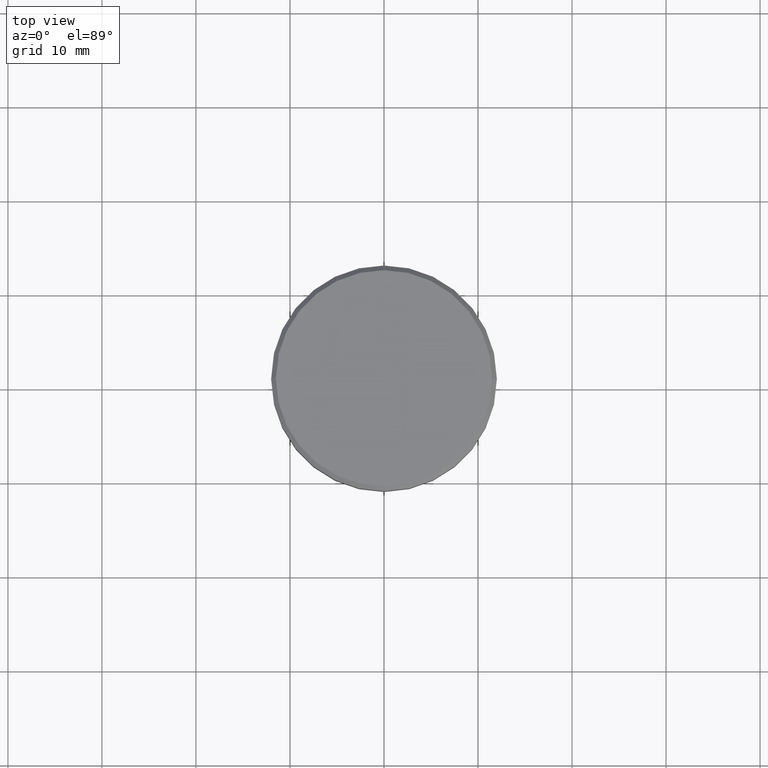
[diagram: clean part render]
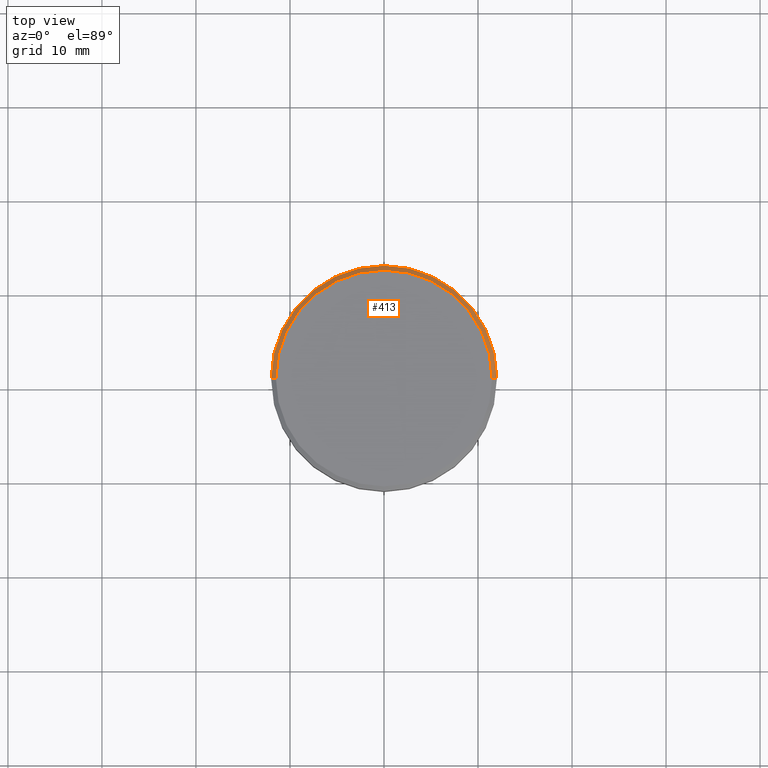
[diagram: same view with one face highlighted and labeled with its STEP entity id]
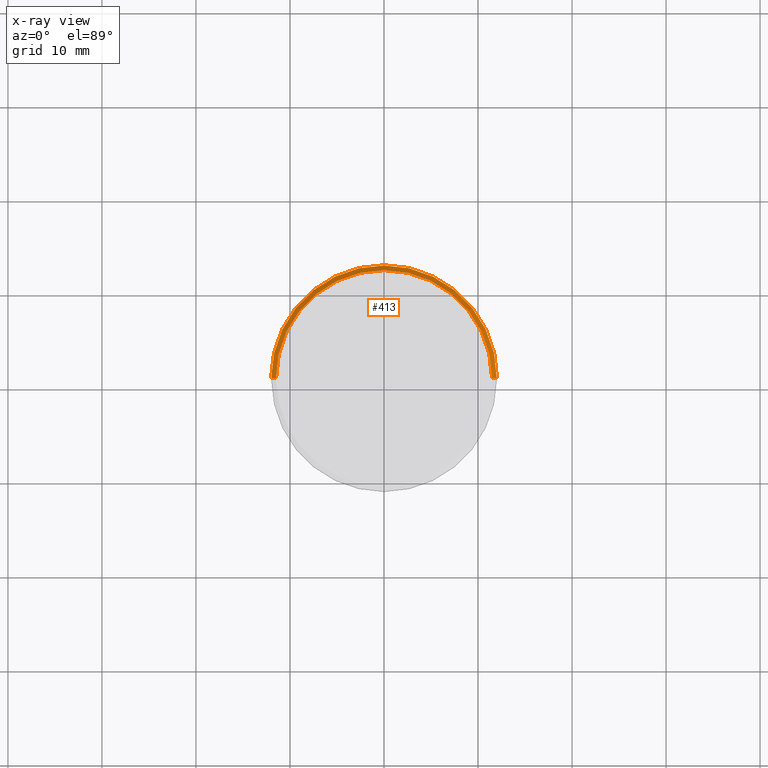
[diagram: x-ray of the same camera — body ghosted, the highlighted face saturated]
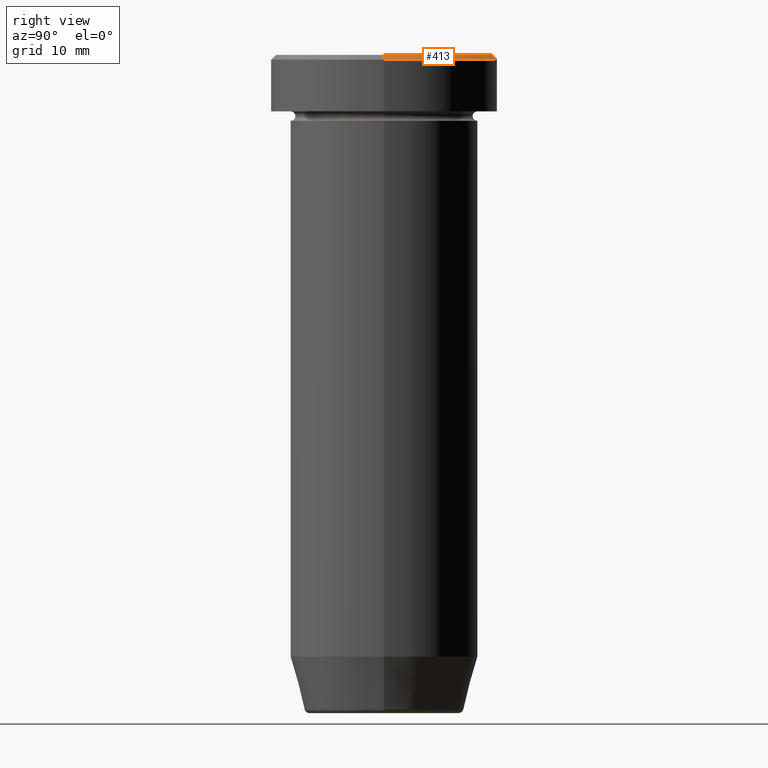
[diagram: same view with one face highlighted and labeled with its STEP entity id]
A machine part, top view. The second image highlights one B-rep face of the part: STEP entity #413.
The next image is the same camera in x-ray: the body ghosted, the highlighted face saturated — about 0% of this face is hidden behind the body in this view.
A second angle (right view) of the same face is appended — the face is thin or edge-on in the first view.
In plain terms, the highlighted conical surface has half-angle 45 deg.
Its self-contained STEP definition (entity closure, byte-faithful):
#6 = LINE ( 'NONE', #239, #550 ) ;
#27 = CIRCLE ( 'NONE', #242, 12.00000000000000000 ) ;
#55 = DIRECTION ( 'NONE',  ( -0.000000000000000000, -0.000000000000000000, 1.000000000000000000 ) ) ;
#103 = EDGE_CURVE ( 'NONE', #509, #262, #237, .T. ) ;
#145 = DIRECTION ( 'NONE',  ( 0.7071067811865425767, 8.659560562354873694E-17, -0.7071067811865525687 ) ) ;
#150 = ORIENTED_EDGE ( 'NONE', *, *, #375, .T. ) ;
#161 = CONICAL_SURFACE ( 'NONE', #246, 11.49999999999999822, 0.7853981633974412846 ) ;
#188 = DIRECTION ( 'NONE',  ( -1.000000000000000000, 0.000000000000000000, 0.000000000000000000 ) ) ;
#216 = EDGE_CURVE ( 'NONE', #353, #509, #466, .T. ) ;
#219 = CARTESIAN_POINT ( 'NONE',  ( 0.000000000000000000, 0.000000000000000000, 0.000000000000000000 ) ) ;
#237 = LINE ( 'NONE', #433, #541 ) ;
#239 = CARTESIAN_POINT ( 'NONE',  ( 11.49999999999999822, 1.408343819019455979E-15, 0.000000000000000000 ) ) ;
#240 = EDGE_CURVE ( 'NONE', #262, #322, #27, .T. ) ;
#241 = DIRECTION ( 'NONE',  ( 1.000000000000000000, 0.000000000000000000, 0.000000000000000000 ) ) ;
#242 = AXIS2_PLACEMENT_3D ( 'NONE', #403, #507, #257 ) ;
#246 = AXIS2_PLACEMENT_3D ( 'NONE', #585, #447, #188 ) ;
#256 = ORIENTED_EDGE ( 'NONE', *, *, #216, .F. ) ;
#257 = DIRECTION ( 'NONE',  ( 1.000000000000000000, 0.000000000000000000, 0.000000000000000000 ) ) ;
#262 = VERTEX_POINT ( 'NONE', #513 ) ;
#270 = DIRECTION ( 'NONE',  ( -0.7071067811865425767, 0.000000000000000000, -0.7071067811865525687 ) ) ;
#299 = EDGE_LOOP ( 'NONE', ( #256, #150, #399, #384 ) ) ;
#322 = VERTEX_POINT ( 'NONE', #342 ) ;
#342 = CARTESIAN_POINT ( 'NONE',  ( 12.00000000000000000, 0.000000000000000000, -0.5000000000000092149 ) ) ;
#353 = VERTEX_POINT ( 'NONE', #526 ) ;
#375 = EDGE_CURVE ( 'NONE', #353, #322, #6, .T. ) ;
#384 = ORIENTED_EDGE ( 'NONE', *, *, #103, .F. ) ;
#394 = FACE_OUTER_BOUND ( 'NONE', #299, .T. ) ;
#399 = ORIENTED_EDGE ( 'NONE', *, *, #240, .F. ) ;
#403 = CARTESIAN_POINT ( 'NONE',  ( 0.000000000000000000, 0.000000000000000000, -0.5000000000000092149 ) ) ;
#413 = ADVANCED_FACE ( 'NONE', ( #394 ), #161, .T. ) ;
#433 = CARTESIAN_POINT ( 'NONE',  ( -11.49999999999999822, 0.000000000000000000, 0.000000000000000000 ) ) ;
#434 = AXIS2_PLACEMENT_3D ( 'NONE', #219, #55, #241 ) ;
#447 = DIRECTION ( 'NONE',  ( 0.000000000000000000, 0.000000000000000000, -1.000000000000000000 ) ) ;
#466 = CIRCLE ( 'NONE', #434, 11.49999999999999822 ) ;
#507 = DIRECTION ( 'NONE',  ( 0.000000000000000000, 0.000000000000000000, -1.000000000000000000 ) ) ;
#509 = VERTEX_POINT ( 'NONE', #586 ) ;
#513 = CARTESIAN_POINT ( 'NONE',  ( -12.00000000000000000, 1.469576158976823947E-15, -0.5000000000000092149 ) ) ;
#526 = CARTESIAN_POINT ( 'NONE',  ( 11.49999999999999822, 1.438959988998139963E-15, 0.000000000000000000 ) ) ;
#541 = VECTOR ( 'NONE', #270, 999.9999999999998863 ) ;
#550 = VECTOR ( 'NONE', #145, 999.9999999999998863 ) ;
#585 = CARTESIAN_POINT ( 'NONE',  ( 0.000000000000000000, 0.000000000000000000, 0.000000000000000000 ) ) ;
#586 = CARTESIAN_POINT ( 'NONE',  ( -11.49999999999999822, 0.000000000000000000, 0.000000000000000000 ) ) ;